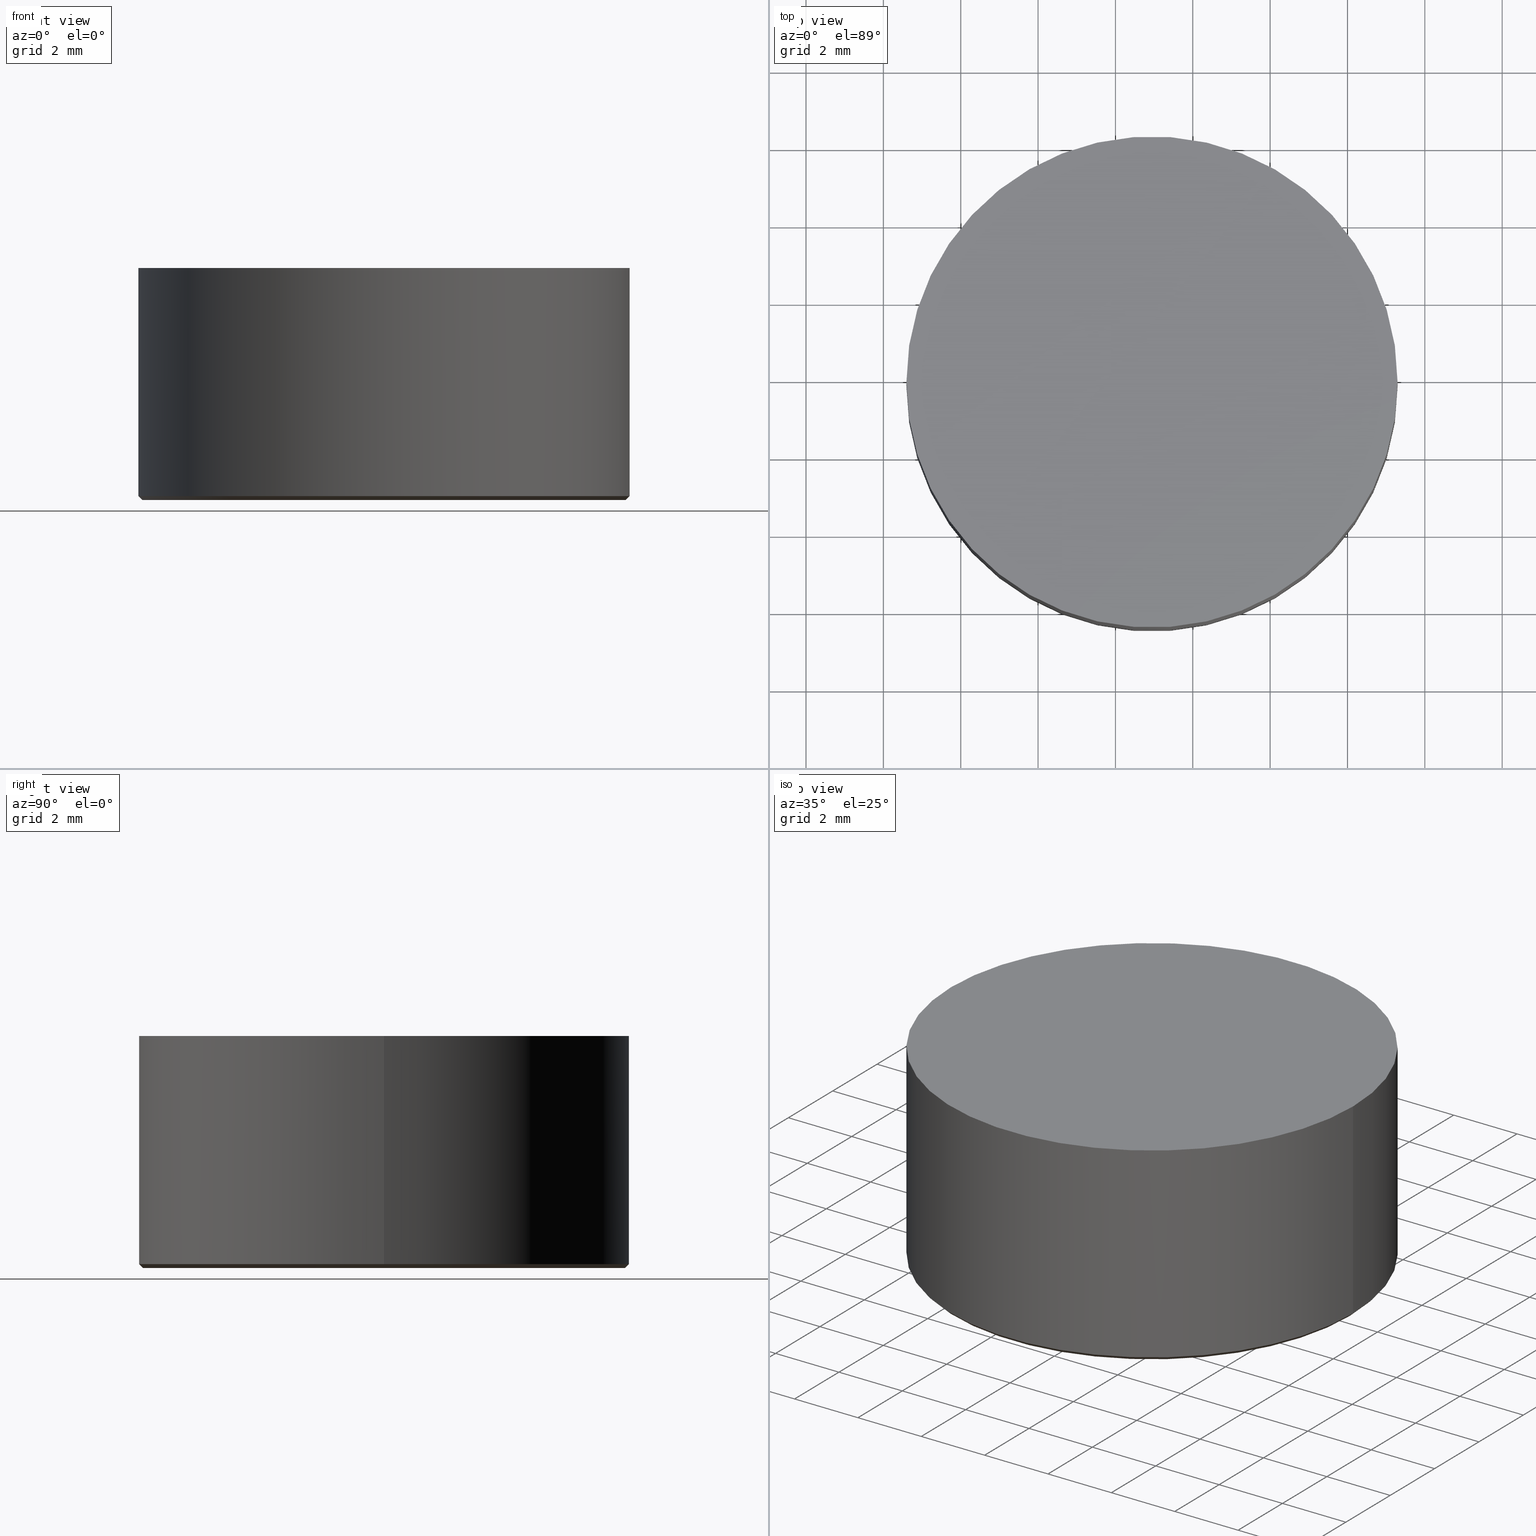
[diagram: canonical four-view strip — front | top / right | iso, engineering-drawing reading convention]
A machine part, canonical four-view strip (front | top / right | iso — engineering-drawing reading convention). The complete STEP part file that produces these views, byte-faithful:
ISO-10303-21;
HEADER;
FILE_DESCRIPTION (( 'STEP AP214' ),
    '1' );
FILE_NAME ('5377-E0W.step',
    '2007-11-09T02:32:45',
    ( ' ' ),
    ( ' ' ),
    'SwSTEP 2.0',
    'SolidWorks 2007',
    '' );
FILE_SCHEMA (( 'AUTOMOTIVE_DESIGN' ));
ENDSEC;

DATA;
#1 =( LENGTH_UNIT ( ) NAMED_UNIT ( * ) SI_UNIT ( $, .METRE. ) );
#2 = LENGTH_MEASURE_WITH_UNIT ( LENGTH_MEASURE( 0.02539999999999999900 ), #1 );
#3 =( NAMED_UNIT ( * ) PLANE_ANGLE_UNIT ( ) SI_UNIT ( $, .RADIAN. ) );
#4 = DIMENSIONAL_EXPONENTS ( 1.000000000000000000, 0.0000000000000000000, 0.0000000000000000000, 0.0000000000000000000, 0.0000000000000000000, 0.0000000000000000000, 0.0000000000000000000 ) ;
#5 =( CONVERSION_BASED_UNIT ( 'INCH', #2 ) LENGTH_UNIT ( ) NAMED_UNIT ( #4 ) );
#6 =( NAMED_UNIT ( * ) SI_UNIT ( $, .STERADIAN. ) SOLID_ANGLE_UNIT ( ) );
#7 = UNCERTAINTY_MEASURE_WITH_UNIT (LENGTH_MEASURE( 1.000000000000000100E-005 ), #5, 'distance_accuracy_value', 'NONE');
#8 =( GEOMETRIC_REPRESENTATION_CONTEXT ( 3 ) GLOBAL_UNCERTAINTY_ASSIGNED_CONTEXT ( ( #7 ) ) GLOBAL_UNIT_ASSIGNED_CONTEXT ( ( #5, #3, #6 ) ) REPRESENTATION_CONTEXT ( 'NONE', 'WORKASPACE' ) );
#9 = AXIS2_PLACEMENT_3D ( 'NONE', #14, #13, #12 ) ;
#10 = DIRECTION ( 'NONE',  ( 0.0000000000000000000, 0.0000000000000000000, 1.000000000000000000 ) ) ;
#11 = DIRECTION ( 'NONE',  ( 1.000000000000000000, 0.0000000000000000000, 0.0000000000000000000 ) ) ;
#12 = DIRECTION ( 'NONE',  ( 1.000000000000000000, 0.0000000000000000000, 0.0000000000000000000 ) ) ;
#13 = DIRECTION ( 'NONE',  ( 0.0000000000000000000, 0.0000000000000000000, 1.000000000000000000 ) ) ;
#14 = CARTESIAN_POINT ( 'NONE',  ( -0.04150932971835186200, -0.003652676017679375900, -0.08978774678871552500 ) ) ;
#15 = CONICAL_SURFACE ( 'NONE', #9, 0.2500000000000001100, 0.7853981633974569400 ) ;
#16 = CARTESIAN_POINT ( 'NONE',  ( -0.04150932971835186200, -0.003652676017679375900, -0.08978774678871552500 ) ) ;
#17 = AXIS2_PLACEMENT_3D ( 'NONE', #16, #10, #11 ) ;
#18 = CIRCLE ( 'NONE', #17, 0.2500000000000001100 ) ;
#19 = CARTESIAN_POINT ( 'NONE',  ( 0.2084906702816482500, -0.003652676017679375900, -0.08978774678871552500 ) ) ;
#20 = ORIENTED_EDGE ( 'NONE', *, *, #21, .T. ) ;
#21 = EDGE_CURVE ( 'NONE', #55, #35, #76, .T. ) ;
#22 = OPEN_SHELL ( 'NONE', ( #51, #41, #25, #29, #78, #85 ) ) ;
#23 = ORIENTED_EDGE ( 'NONE', *, *, #24, .F. ) ;
#24 = EDGE_CURVE ( 'NONE', #46, #35, #71, .T. ) ;
#25 = ADVANCED_FACE ( 'NONE', ( #67 ), #109, .F. ) ;
#26 = ORIENTED_EDGE ( 'NONE', *, *, #27, .T. ) ;
#27 = EDGE_CURVE ( 'NONE', #46, #45, #103, .T. ) ;
#28 = ORIENTED_EDGE ( 'NONE', *, *, #44, .T. ) ;
#29 = ADVANCED_FACE ( 'NONE', ( #98 ), #15, .T. ) ;
#30 = EDGE_LOOP ( 'NONE', ( #31, #32, #33, #34 ) ) ;
#31 = ORIENTED_EDGE ( 'NONE', *, *, #48, .F. ) ;
#32 = ORIENTED_EDGE ( 'NONE', *, *, #27, .F. ) ;
#33 = ORIENTED_EDGE ( 'NONE', *, *, #24, .T. ) ;
#34 = ORIENTED_EDGE ( 'NONE', *, *, #77, .F. ) ;
#35 = VERTEX_POINT ( 'NONE', #19 ) ;
#36 = ORIENTED_EDGE ( 'NONE', *, *, #37, .T. ) ;
#37 = EDGE_CURVE ( 'NONE', #35, #38, #18, .T. ) ;
#38 = VERTEX_POINT ( 'NONE', #142 ) ;
#39 = ORIENTED_EDGE ( 'NONE', *, *, #40, .F. ) ;
#40 = EDGE_CURVE ( 'NONE', #56, #38, #140, .T. ) ;
#41 = ADVANCED_FACE ( 'NONE', ( #136 ), #117, .T. ) ;
#42 = EDGE_LOOP ( 'NONE', ( #43, #47, #49, #23 ) ) ;
#43 = ORIENTED_EDGE ( 'NONE', *, *, #44, .F. ) ;
#44 = EDGE_CURVE ( 'NONE', #45, #46, #174, .T. ) ;
#45 = VERTEX_POINT ( 'NONE', #166 ) ;
#46 = VERTEX_POINT ( 'NONE', #165 ) ;
#47 = ORIENTED_EDGE ( 'NONE', *, *, #48, .T. ) ;
#48 = EDGE_CURVE ( 'NONE', #45, #38, #163, .T. ) ;
#49 = ORIENTED_EDGE ( 'NONE', *, *, #37, .F. ) ;
#50 = EDGE_LOOP ( 'NONE', ( #26, #28 ) ) ;
#51 = ADVANCED_FACE ( 'NONE', ( #159 ), #202, .T. ) ;
#52 = EDGE_LOOP ( 'NONE', ( #53, #20, #36, #39 ) ) ;
#53 = ORIENTED_EDGE ( 'NONE', *, *, #54, .F. ) ;
#54 = EDGE_CURVE ( 'NONE', #55, #56, #198, .T. ) ;
#55 = VERTEX_POINT ( 'NONE', #194 ) ;
#56 = VERTEX_POINT ( 'NONE', #193 ) ;
#57 =( LENGTH_UNIT ( ) NAMED_UNIT ( * ) SI_UNIT ( $, .METRE. ) );
#58 = MECHANICAL_DESIGN_GEOMETRIC_PRESENTATION_REPRESENTATION (  '', ( #60 ), #110 ) ;
#59 = PRESENTATION_LAYER_ASSIGNMENT (  '', '', ( #60 ) ) ;
#60 = STYLED_ITEM ( 'NONE', ( #61 ), #25 ) ;
#61 = PRESENTATION_STYLE_ASSIGNMENT (( #62 ) ) ;
#62 = SURFACE_STYLE_USAGE ( .BOTH. , #63 ) ;
#63 = SURFACE_SIDE_STYLE ('',( #64 ) ) ;
#64 = SURFACE_STYLE_FILL_AREA ( #65 ) ;
#65 = FILL_AREA_STYLE ('',( #72 ) ) ;
#66 = COLOUR_RGB ( '',0.6980392156862744700, 0.6980392156862744700, 1.000000000000000000 ) ;
#67 = FACE_OUTER_BOUND ( 'NONE', #50, .T. ) ;
#68 = DIRECTION ( 'NONE',  ( 0.7071067811865536800, 0.0000000000000000000, 0.7071067811865414700 ) ) ;
#69 = VECTOR ( 'NONE', #68, 39.37007874015748100 ) ;
#70 = CARTESIAN_POINT ( 'NONE',  ( 0.2084906702816482500, -0.003652676017679375900, -0.08978774678871552500 ) ) ;
#71 = LINE ( 'NONE', #70, #69 ) ;
#72 = FILL_AREA_STYLE_COLOUR ( '', #66 ) ;
#73 = DIRECTION ( 'NONE',  ( 0.0000000000000000000, 0.0000000000000000000, -1.000000000000000000 ) ) ;
#74 = VECTOR ( 'NONE', #73, 39.37007874015748100 ) ;
#75 = CARTESIAN_POINT ( 'NONE',  ( 0.2084906702816482500, -0.003652676017679345500, 0.1424957177782135400 ) ) ;
#76 = LINE ( 'NONE', #75, #74 ) ;
#77 = EDGE_CURVE ( 'NONE', #38, #35, #191, .T. ) ;
#78 = ADVANCED_FACE ( 'NONE', ( #192 ), #225, .T. ) ;
#79 = EDGE_LOOP ( 'NONE', ( #80, #81, #83, #84 ) ) ;
#80 = ORIENTED_EDGE ( 'NONE', *, *, #21, .F. ) ;
#81 = ORIENTED_EDGE ( 'NONE', *, *, #82, .F. ) ;
#82 = EDGE_CURVE ( 'NONE', #56, #55, #220, .T. ) ;
#83 = ORIENTED_EDGE ( 'NONE', *, *, #40, .T. ) ;
#84 = ORIENTED_EDGE ( 'NONE', *, *, #77, .T. ) ;
#85 = ADVANCED_FACE ( 'NONE', ( #216 ), #243, .T. ) ;
#86 = EDGE_LOOP ( 'NONE', ( #87, #88 ) ) ;
#87 = ORIENTED_EDGE ( 'NONE', *, *, #82, .T. ) ;
#88 = ORIENTED_EDGE ( 'NONE', *, *, #54, .T. ) ;
#89 = MECHANICAL_DESIGN_GEOMETRIC_PRESENTATION_REPRESENTATION (  '', ( #91 ), #8 ) ;
#90 = PRESENTATION_LAYER_ASSIGNMENT (  '', '', ( #91 ) ) ;
#91 = STYLED_ITEM ( 'NONE', ( #92 ), #29 ) ;
#92 = PRESENTATION_STYLE_ASSIGNMENT (( #93 ) ) ;
#93 = SURFACE_STYLE_USAGE ( .BOTH. , #94 ) ;
#94 = SURFACE_SIDE_STYLE ('',( #95 ) ) ;
#95 = SURFACE_STYLE_FILL_AREA ( #96 ) ;
#96 = FILL_AREA_STYLE ('',( #104 ) ) ;
#97 = COLOUR_RGB ( '',0.7529411764705882200, 0.7529411764705882200, 0.7529411764705882200 ) ;
#98 = FACE_OUTER_BOUND ( 'NONE', #30, .T. ) ;
#99 = DIRECTION ( 'NONE',  ( 1.000000000000000000, 0.0000000000000000000, 0.0000000000000000000 ) ) ;
#100 = DIRECTION ( 'NONE',  ( 0.0000000000000000000, 0.0000000000000000000, -1.000000000000000000 ) ) ;
#101 = CARTESIAN_POINT ( 'NONE',  ( -0.04150932971835186200, -0.003652676017679375900, -0.09372475466273134900 ) ) ;
#102 = AXIS2_PLACEMENT_3D ( 'NONE', #101, #100, #99 ) ;
#103 = CIRCLE ( 'NONE', #102, 0.2460629921259842000 ) ;
#104 = FILL_AREA_STYLE_COLOUR ( '', #97 ) ;
#105 = DIRECTION ( 'NONE',  ( 1.000000000000000000, 0.0000000000000000000, 0.0000000000000000000 ) ) ;
#106 = DIRECTION ( 'NONE',  ( 0.0000000000000000000, 0.0000000000000000000, 1.000000000000000000 ) ) ;
#107 = CARTESIAN_POINT ( 'NONE',  ( -0.04150932971835186200, -0.003652676017679375900, -0.09372475466273134900 ) ) ;
#108 = AXIS2_PLACEMENT_3D ( 'NONE', #107, #106, #105 ) ;
#109 = PLANE ( 'NONE',  #108 ) ;
#110 =( GEOMETRIC_REPRESENTATION_CONTEXT ( 3 ) GLOBAL_UNCERTAINTY_ASSIGNED_CONTEXT ( ( #111 ) ) GLOBAL_UNIT_ASSIGNED_CONTEXT ( ( #114, #113, #112 ) ) REPRESENTATION_CONTEXT ( 'NONE', 'WORKASPACE' ) );
#111 = UNCERTAINTY_MEASURE_WITH_UNIT (LENGTH_MEASURE( 1.000000000000000100E-005 ), #114, 'distance_accuracy_value', 'NONE');
#112 =( NAMED_UNIT ( * ) SI_UNIT ( $, .STERADIAN. ) SOLID_ANGLE_UNIT ( ) );
#113 =( NAMED_UNIT ( * ) PLANE_ANGLE_UNIT ( ) SI_UNIT ( $, .RADIAN. ) );
#114 =( CONVERSION_BASED_UNIT ( 'INCH', #115 ) LENGTH_UNIT ( ) NAMED_UNIT ( #116 ) );
#115 = LENGTH_MEASURE_WITH_UNIT ( LENGTH_MEASURE( 0.02539999999999999900 ), #57 );
#116 = DIMENSIONAL_EXPONENTS ( 1.000000000000000000, 0.0000000000000000000, 0.0000000000000000000, 0.0000000000000000000, 0.0000000000000000000, 0.0000000000000000000, 0.0000000000000000000 ) ;
#117 = CONICAL_SURFACE ( 'NONE', #173, 0.2500000000000001100, 0.7853981633974569400 ) ;
#118 = CARTESIAN_POINT ( 'NONE',  ( -0.04150932971835186200, -0.003652676017679375900, -0.08978774678871552500 ) ) ;
#119 =( GEOMETRIC_REPRESENTATION_CONTEXT ( 3 ) GLOBAL_UNCERTAINTY_ASSIGNED_CONTEXT ( ( #120 ) ) GLOBAL_UNIT_ASSIGNED_CONTEXT ( ( #123, #122, #121 ) ) REPRESENTATION_CONTEXT ( 'NONE', 'WORKASPACE' ) );
#120 = UNCERTAINTY_MEASURE_WITH_UNIT (LENGTH_MEASURE( 1.000000000000000100E-005 ), #123, 'distance_accuracy_value', 'NONE');
#121 =( NAMED_UNIT ( * ) SI_UNIT ( $, .STERADIAN. ) SOLID_ANGLE_UNIT ( ) );
#122 =( NAMED_UNIT ( * ) PLANE_ANGLE_UNIT ( ) SI_UNIT ( $, .RADIAN. ) );
#123 =( CONVERSION_BASED_UNIT ( 'INCH', #124 ) LENGTH_UNIT ( ) NAMED_UNIT ( #125 ) );
#124 = LENGTH_MEASURE_WITH_UNIT ( LENGTH_MEASURE( 0.02539999999999999900 ), #126 );
#125 = DIMENSIONAL_EXPONENTS ( 1.000000000000000000, 0.0000000000000000000, 0.0000000000000000000, 0.0000000000000000000, 0.0000000000000000000, 0.0000000000000000000, 0.0000000000000000000 ) ;
#126 =( LENGTH_UNIT ( ) NAMED_UNIT ( * ) SI_UNIT ( $, .METRE. ) );
#127 = MECHANICAL_DESIGN_GEOMETRIC_PRESENTATION_REPRESENTATION (  '', ( #129 ), #119 ) ;
#128 = PRESENTATION_LAYER_ASSIGNMENT (  '', '', ( #129 ) ) ;
#129 = STYLED_ITEM ( 'NONE', ( #130 ), #41 ) ;
#130 = PRESENTATION_STYLE_ASSIGNMENT (( #131 ) ) ;
#131 = SURFACE_STYLE_USAGE ( .BOTH. , #132 ) ;
#132 = SURFACE_SIDE_STYLE ('',( #133 ) ) ;
#133 = SURFACE_STYLE_FILL_AREA ( #134 ) ;
#134 = FILL_AREA_STYLE ('',( #141 ) ) ;
#135 = COLOUR_RGB ( '',0.7529411764705882200, 0.7529411764705882200, 0.7529411764705882200 ) ;
#136 = FACE_OUTER_BOUND ( 'NONE', #42, .T. ) ;
#137 = DIRECTION ( 'NONE',  ( 0.0000000000000000000, 0.0000000000000000000, -1.000000000000000000 ) ) ;
#138 = VECTOR ( 'NONE', #137, 39.37007874015748100 ) ;
#139 = CARTESIAN_POINT ( 'NONE',  ( -0.2915093297183519700, -0.003652676017679375900, 0.1424957177782135400 ) ) ;
#140 = LINE ( 'NONE', #139, #138 ) ;
#141 = FILL_AREA_STYLE_COLOUR ( '', #135 ) ;
#142 = CARTESIAN_POINT ( 'NONE',  ( -0.2915093297183519700, -0.003652676017679345500, -0.08978774678871552500 ) ) ;
#143 = UNCERTAINTY_MEASURE_WITH_UNIT (LENGTH_MEASURE( 1.000000000000000100E-005 ), #146, 'distance_accuracy_value', 'NONE');
#144 =( NAMED_UNIT ( * ) SI_UNIT ( $, .STERADIAN. ) SOLID_ANGLE_UNIT ( ) );
#145 =( NAMED_UNIT ( * ) PLANE_ANGLE_UNIT ( ) SI_UNIT ( $, .RADIAN. ) );
#146 =( CONVERSION_BASED_UNIT ( 'INCH', #147 ) LENGTH_UNIT ( ) NAMED_UNIT ( #148 ) );
#147 = LENGTH_MEASURE_WITH_UNIT ( LENGTH_MEASURE( 0.02539999999999999900 ), #149 );
#148 = DIMENSIONAL_EXPONENTS ( 1.000000000000000000, 0.0000000000000000000, 0.0000000000000000000, 0.0000000000000000000, 0.0000000000000000000, 0.0000000000000000000, 0.0000000000000000000 ) ;
#149 =( LENGTH_UNIT ( ) NAMED_UNIT ( * ) SI_UNIT ( $, .METRE. ) );
#150 = MECHANICAL_DESIGN_GEOMETRIC_PRESENTATION_REPRESENTATION (  '', ( #152 ), #205 ) ;
#151 = PRESENTATION_LAYER_ASSIGNMENT (  '', '', ( #152 ) ) ;
#152 = STYLED_ITEM ( 'NONE', ( #153 ), #51 ) ;
#153 = PRESENTATION_STYLE_ASSIGNMENT (( #154 ) ) ;
#154 = SURFACE_STYLE_USAGE ( .BOTH. , #155 ) ;
#155 = SURFACE_SIDE_STYLE ('',( #156 ) ) ;
#156 = SURFACE_STYLE_FILL_AREA ( #157 ) ;
#157 = FILL_AREA_STYLE ('',( #164 ) ) ;
#158 = COLOUR_RGB ( '',0.7529411764705882200, 0.7529411764705882200, 0.7529411764705882200 ) ;
#159 = FACE_OUTER_BOUND ( 'NONE', #52, .T. ) ;
#160 = DIRECTION ( 'NONE',  ( -0.7071067811865536800, 8.659274570719430600E-017, 0.7071067811865414700 ) ) ;
#161 = VECTOR ( 'NONE', #160, 39.37007874015748100 ) ;
#162 = CARTESIAN_POINT ( 'NONE',  ( -0.2915093297183519700, -0.003652676017679345500, -0.08978774678871552500 ) ) ;
#163 = LINE ( 'NONE', #162, #161 ) ;
#164 = FILL_AREA_STYLE_COLOUR ( '', #158 ) ;
#165 = CARTESIAN_POINT ( 'NONE',  ( 0.2045536624076323400, -0.003652676017679375900, -0.09372475466273134900 ) ) ;
#166 = CARTESIAN_POINT ( 'NONE',  ( -0.2875723218443360700, -0.003652676017679345900, -0.09372475466273134900 ) ) ;
#167 = DIRECTION ( 'NONE',  ( 1.000000000000000000, 0.0000000000000000000, 0.0000000000000000000 ) ) ;
#168 = DIRECTION ( 'NONE',  ( 0.0000000000000000000, 0.0000000000000000000, -1.000000000000000000 ) ) ;
#169 = CARTESIAN_POINT ( 'NONE',  ( -0.04150932971835186200, -0.003652676017679375900, -0.09372475466273134900 ) ) ;
#170 = AXIS2_PLACEMENT_3D ( 'NONE', #169, #168, #167 ) ;
#171 = DIRECTION ( 'NONE',  ( 1.000000000000000000, 0.0000000000000000000, 0.0000000000000000000 ) ) ;
#172 = DIRECTION ( 'NONE',  ( 0.0000000000000000000, 0.0000000000000000000, 1.000000000000000000 ) ) ;
#173 = AXIS2_PLACEMENT_3D ( 'NONE', #118, #172, #171 ) ;
#174 = CIRCLE ( 'NONE', #170, 0.2460629921259842000 ) ;
#175 = DIMENSIONAL_EXPONENTS ( 1.000000000000000000, 0.0000000000000000000, 0.0000000000000000000, 0.0000000000000000000, 0.0000000000000000000, 0.0000000000000000000, 0.0000000000000000000 ) ;
#176 =( LENGTH_UNIT ( ) NAMED_UNIT ( * ) SI_UNIT ( $, .METRE. ) );
#177 = MECHANICAL_DESIGN_GEOMETRIC_PRESENTATION_REPRESENTATION (  '', ( #179 ), #228 ) ;
#178 = PRESENTATION_LAYER_ASSIGNMENT (  '', '', ( #179 ) ) ;
#179 = STYLED_ITEM ( 'NONE', ( #180 ), #78 ) ;
#180 = PRESENTATION_STYLE_ASSIGNMENT (( #181 ) ) ;
#181 = SURFACE_STYLE_USAGE ( .BOTH. , #182 ) ;
#182 = SURFACE_SIDE_STYLE ('',( #183 ) ) ;
#183 = SURFACE_STYLE_FILL_AREA ( #184 ) ;
#184 = FILL_AREA_STYLE ('',( #185 ) ) ;
#185 = FILL_AREA_STYLE_COLOUR ( '', #186 ) ;
#186 = COLOUR_RGB ( '',0.7529411764705882200, 0.7529411764705882200, 0.7529411764705882200 ) ;
#187 = DIRECTION ( 'NONE',  ( 1.000000000000000000, 0.0000000000000000000, 0.0000000000000000000 ) ) ;
#188 = DIRECTION ( 'NONE',  ( 0.0000000000000000000, 0.0000000000000000000, 1.000000000000000000 ) ) ;
#189 = CARTESIAN_POINT ( 'NONE',  ( -0.04150932971835186200, -0.003652676017679375900, -0.08978774678871552500 ) ) ;
#190 = AXIS2_PLACEMENT_3D ( 'NONE', #189, #188, #187 ) ;
#191 = CIRCLE ( 'NONE', #190, 0.2500000000000001100 ) ;
#192 = FACE_OUTER_BOUND ( 'NONE', #79, .T. ) ;
#193 = CARTESIAN_POINT ( 'NONE',  ( -0.2915093297183519700, -0.003652676017679375900, 0.1424957177782135400 ) ) ;
#194 = CARTESIAN_POINT ( 'NONE',  ( 0.2084906702816482500, -0.003652676017679345500, 0.1424957177782135400 ) ) ;
#195 = DIRECTION ( 'NONE',  ( 1.000000000000000000, 0.0000000000000000000, 0.0000000000000000000 ) ) ;
#196 = DIRECTION ( 'NONE',  ( 0.0000000000000000000, 0.0000000000000000000, 1.000000000000000000 ) ) ;
#197 = AXIS2_PLACEMENT_3D ( 'NONE', #203, #196, #195 ) ;
#198 = CIRCLE ( 'NONE', #197, 0.2500000000000001100 ) ;
#199 = DIRECTION ( 'NONE',  ( -1.000000000000000000, 0.0000000000000000000, 0.0000000000000000000 ) ) ;
#200 = DIRECTION ( 'NONE',  ( 0.0000000000000000000, 0.0000000000000000000, -1.000000000000000000 ) ) ;
#201 = AXIS2_PLACEMENT_3D ( 'NONE', #204, #200, #199 ) ;
#202 = CYLINDRICAL_SURFACE ( 'NONE', #201, 0.2500000000000001100 ) ;
#203 = CARTESIAN_POINT ( 'NONE',  ( -0.04150932971835186200, -0.003652676017679375900, 0.1424957177782135400 ) ) ;
#204 = CARTESIAN_POINT ( 'NONE',  ( -0.04150932971835186200, -0.003652676017679375900, 0.1424957177782135400 ) ) ;
#205 =( GEOMETRIC_REPRESENTATION_CONTEXT ( 3 ) GLOBAL_UNCERTAINTY_ASSIGNED_CONTEXT ( ( #143 ) ) GLOBAL_UNIT_ASSIGNED_CONTEXT ( ( #146, #145, #144 ) ) REPRESENTATION_CONTEXT ( 'NONE', 'WORKASPACE' ) );
#206 =( LENGTH_UNIT ( ) NAMED_UNIT ( * ) SI_UNIT ( $, .METRE. ) );
#207 = MECHANICAL_DESIGN_GEOMETRIC_PRESENTATION_REPRESENTATION (  '', ( #209 ), #244 ) ;
#208 = PRESENTATION_LAYER_ASSIGNMENT (  '', '', ( #209 ) ) ;
#209 = STYLED_ITEM ( 'NONE', ( #210 ), #85 ) ;
#210 = PRESENTATION_STYLE_ASSIGNMENT (( #211 ) ) ;
#211 = SURFACE_STYLE_USAGE ( .BOTH. , #212 ) ;
#212 = SURFACE_SIDE_STYLE ('',( #213 ) ) ;
#213 = SURFACE_STYLE_FILL_AREA ( #214 ) ;
#214 = FILL_AREA_STYLE ('',( #221 ) ) ;
#215 = COLOUR_RGB ( '',0.7529411764705882200, 0.7529411764705882200, 0.7529411764705882200 ) ;
#216 = FACE_OUTER_BOUND ( 'NONE', #86, .T. ) ;
#217 = DIRECTION ( 'NONE',  ( 1.000000000000000000, 0.0000000000000000000, 0.0000000000000000000 ) ) ;
#218 = DIRECTION ( 'NONE',  ( 0.0000000000000000000, 0.0000000000000000000, 1.000000000000000000 ) ) ;
#219 = AXIS2_PLACEMENT_3D ( 'NONE', #226, #218, #217 ) ;
#220 = CIRCLE ( 'NONE', #219, 0.2500000000000001100 ) ;
#221 = FILL_AREA_STYLE_COLOUR ( '', #215 ) ;
#222 = DIRECTION ( 'NONE',  ( -1.000000000000000000, 0.0000000000000000000, 0.0000000000000000000 ) ) ;
#223 = DIRECTION ( 'NONE',  ( 0.0000000000000000000, 0.0000000000000000000, -1.000000000000000000 ) ) ;
#224 = AXIS2_PLACEMENT_3D ( 'NONE', #227, #223, #222 ) ;
#225 = CYLINDRICAL_SURFACE ( 'NONE', #224, 0.2500000000000001100 ) ;
#226 = CARTESIAN_POINT ( 'NONE',  ( -0.04150932971835186200, -0.003652676017679375900, 0.1424957177782135400 ) ) ;
#227 = CARTESIAN_POINT ( 'NONE',  ( -0.04150932971835186200, -0.003652676017679375900, 0.1424957177782135400 ) ) ;
#228 =( GEOMETRIC_REPRESENTATION_CONTEXT ( 3 ) GLOBAL_UNCERTAINTY_ASSIGNED_CONTEXT ( ( #229 ) ) GLOBAL_UNIT_ASSIGNED_CONTEXT ( ( #232, #231, #230 ) ) REPRESENTATION_CONTEXT ( 'NONE', 'WORKASPACE' ) );
#229 = UNCERTAINTY_MEASURE_WITH_UNIT (LENGTH_MEASURE( 1.000000000000000100E-005 ), #232, 'distance_accuracy_value', 'NONE');
#230 =( NAMED_UNIT ( * ) SI_UNIT ( $, .STERADIAN. ) SOLID_ANGLE_UNIT ( ) );
#231 =( NAMED_UNIT ( * ) PLANE_ANGLE_UNIT ( ) SI_UNIT ( $, .RADIAN. ) );
#232 =( CONVERSION_BASED_UNIT ( 'INCH', #233 ) LENGTH_UNIT ( ) NAMED_UNIT ( #175 ) );
#233 = LENGTH_MEASURE_WITH_UNIT ( LENGTH_MEASURE( 0.02539999999999999900 ), #176 );
#234 =( NAMED_UNIT ( * ) PLANE_ANGLE_UNIT ( ) SI_UNIT ( $, .RADIAN. ) );
#235 =( CONVERSION_BASED_UNIT ( 'INCH', #236 ) LENGTH_UNIT ( ) NAMED_UNIT ( #237 ) );
#236 = LENGTH_MEASURE_WITH_UNIT ( LENGTH_MEASURE( 0.02539999999999999900 ), #238 );
#237 = DIMENSIONAL_EXPONENTS ( 1.000000000000000000, 0.0000000000000000000, 0.0000000000000000000, 0.0000000000000000000, 0.0000000000000000000, 0.0000000000000000000, 0.0000000000000000000 ) ;
#238 =( LENGTH_UNIT ( ) NAMED_UNIT ( * ) SI_UNIT ( $, .METRE. ) );
#239 = DIRECTION ( 'NONE',  ( 1.000000000000000000, 0.0000000000000000000, 0.0000000000000000000 ) ) ;
#240 = DIRECTION ( 'NONE',  ( 0.0000000000000000000, 0.0000000000000000000, 1.000000000000000000 ) ) ;
#241 = CARTESIAN_POINT ( 'NONE',  ( -0.04150932971835186200, -0.003652676017679375900, 0.1424957177782135400 ) ) ;
#242 = AXIS2_PLACEMENT_3D ( 'NONE', #241, #240, #239 ) ;
#243 = PLANE ( 'NONE',  #242 ) ;
#244 =( GEOMETRIC_REPRESENTATION_CONTEXT ( 3 ) GLOBAL_UNCERTAINTY_ASSIGNED_CONTEXT ( ( #245 ) ) GLOBAL_UNIT_ASSIGNED_CONTEXT ( ( #248, #247, #246 ) ) REPRESENTATION_CONTEXT ( 'NONE', 'WORKASPACE' ) );
#245 = UNCERTAINTY_MEASURE_WITH_UNIT (LENGTH_MEASURE( 1.000000000000000100E-005 ), #248, 'distance_accuracy_value', 'NONE');
#246 =( NAMED_UNIT ( * ) SI_UNIT ( $, .STERADIAN. ) SOLID_ANGLE_UNIT ( ) );
#247 =( NAMED_UNIT ( * ) PLANE_ANGLE_UNIT ( ) SI_UNIT ( $, .RADIAN. ) );
#248 =( CONVERSION_BASED_UNIT ( 'INCH', #249 ) LENGTH_UNIT ( ) NAMED_UNIT ( #250 ) );
#249 = LENGTH_MEASURE_WITH_UNIT ( LENGTH_MEASURE( 0.02539999999999999900 ), #206 );
#250 = DIMENSIONAL_EXPONENTS ( 1.000000000000000000, 0.0000000000000000000, 0.0000000000000000000, 0.0000000000000000000, 0.0000000000000000000, 0.0000000000000000000, 0.0000000000000000000 ) ;
#251 = DIRECTION ( 'NONE',  ( 1.000000000000000000, 0.0000000000000000000, 0.0000000000000000000 ) ) ;
#252 = DIRECTION ( 'NONE',  ( 0.0000000000000000000, 0.0000000000000000000, 1.000000000000000000 ) ) ;
#253 = CARTESIAN_POINT ( 'NONE',  ( 0.0000000000000000000, 0.0000000000000000000, 0.0000000000000000000 ) ) ;
#254 = AXIS2_PLACEMENT_3D ( 'NONE', #253, #252, #251 ) ;
#255 = SHAPE_DEFINITION_REPRESENTATION ( #261, #257 ) ;
#256 = SHELL_BASED_SURFACE_MODEL ( 'NONE', ( #22 ) );
#257 = MANIFOLD_SURFACE_SHAPE_REPRESENTATION ( '5377-E0W', ( #256, #254 ), #258 ) ;
#258 =( GEOMETRIC_REPRESENTATION_CONTEXT ( 3 ) GLOBAL_UNCERTAINTY_ASSIGNED_CONTEXT ( ( #259 ) ) GLOBAL_UNIT_ASSIGNED_CONTEXT ( ( #235, #234, #260 ) ) REPRESENTATION_CONTEXT ( 'NONE', 'WORKASPACE' ) );
#259 = UNCERTAINTY_MEASURE_WITH_UNIT (LENGTH_MEASURE( 1.000000000000000100E-005 ), #235, 'distance_accuracy_value', 'NONE');
#260 =( NAMED_UNIT ( * ) SI_UNIT ( $, .STERADIAN. ) SOLID_ANGLE_UNIT ( ) );
#261 = PRODUCT_DEFINITION_SHAPE ( 'NONE', 'NONE',  #264 ) ;
#262 = PRODUCT_RELATED_PRODUCT_CATEGORY ( 'part', '', ( #268 ) ) ;
#263 = PRODUCT_DEFINITION_FORMATION_WITH_SPECIFIED_SOURCE ( 'ANY', '', #268, .NOT_KNOWN. ) ;
#264 = PRODUCT_DEFINITION ( 'UNKNOWN', '', #263, #265 ) ;
#265 = PRODUCT_DEFINITION_CONTEXT ( 'detailed design', #267, 'design' ) ;
#266 = APPLICATION_PROTOCOL_DEFINITION ( 'draft international standard', 'automotive_design', 1998, #267 ) ;
#267 = APPLICATION_CONTEXT ( 'automotive_design' ) ;
#268 = PRODUCT ( '5377-E0W', '5377-E0W', '', ( #269 ) ) ;
#269 = PRODUCT_CONTEXT ( 'NONE', #271, 'mechanical' ) ;
#270 = APPLICATION_PROTOCOL_DEFINITION ( 'draft international standard', 'automotive_design', 1998, #271 ) ;
#271 = APPLICATION_CONTEXT ( 'automotive_design' ) ;
ENDSEC;
END-ISO-10303-21;
